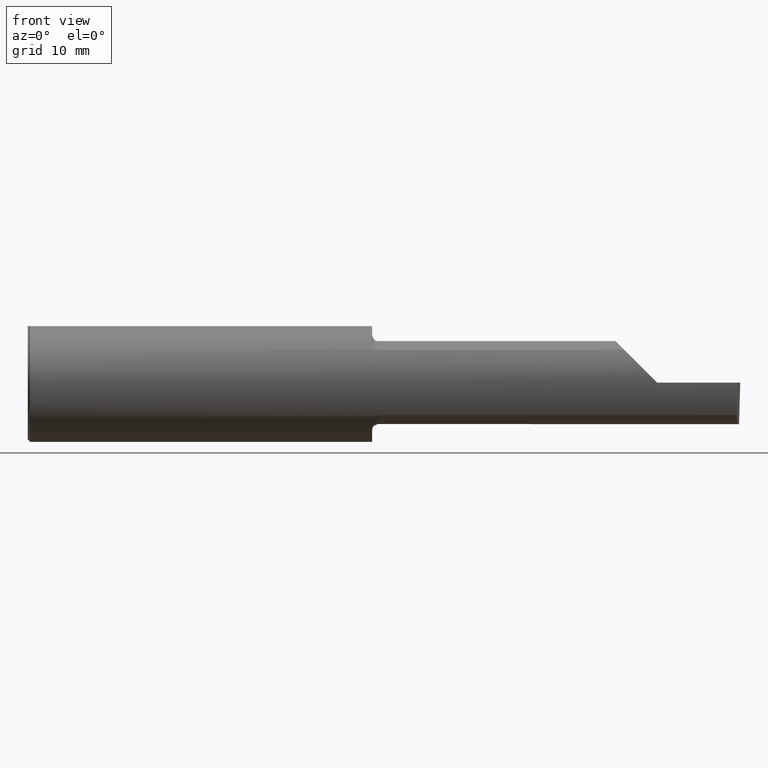
[diagram: clean part render]
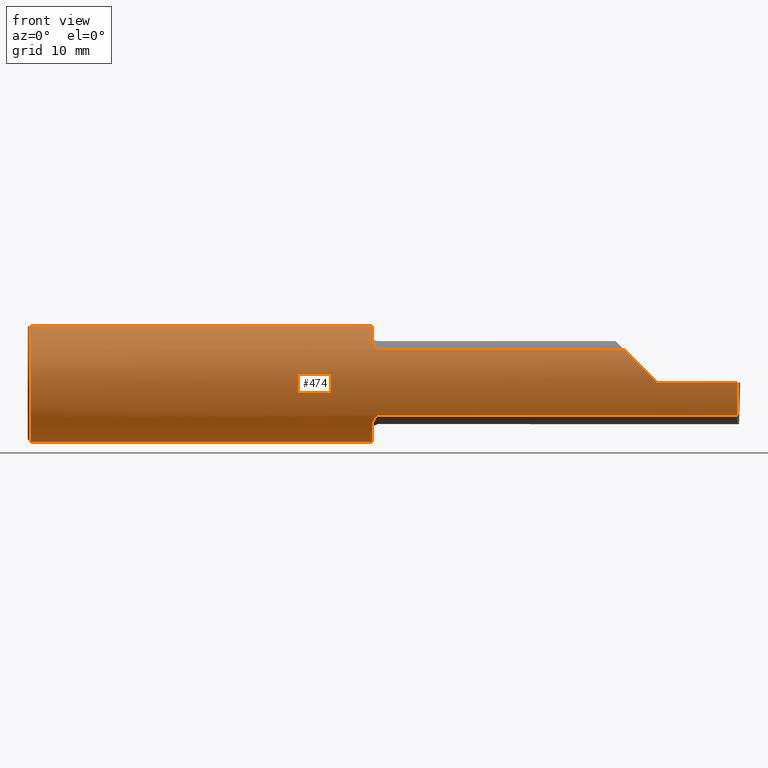
[diagram: same view with one face highlighted and labeled with its STEP entity id]
A machine part, front view. The second image highlights one B-rep face of the part: STEP entity #474.
In plain terms, the highlighted cylindrical surface (partial cylindrical patch) has radius 6.3462 mm, axis along (-1, -0, -0).
Its self-contained STEP definition (entity closure, byte-faithful):
#2 = LINE ( 'NONE', #246, #729 ) ;
#5 = CARTESIAN_POINT ( 'NONE',  ( 1.462579853086619419, -0.2024300470081734082, -0.1464774911482686903 ) ) ;
#8 = CARTESIAN_POINT ( 'NONE',  ( 1.456147634408387459, -0.1932733126899459364, -0.1584637047788198250 ) ) ;
#13 = DIRECTION ( 'NONE',  ( -1.000000000000000000, -0.000000000000000000, -0.000000000000000000 ) ) ;
#15 = CARTESIAN_POINT ( 'NONE',  ( 1.450000000000000178, 0.000000000000000000, 0.000000000000000000 ) ) ;
#18 = VERTEX_POINT ( 'NONE', #254 ) ;
#20 = CARTESIAN_POINT ( 'NONE',  ( 1.462616400345755574, -0.2024684335577101590, 0.1464246884265640314 ) ) ;
#27 = ORIENTED_EDGE ( 'NONE', *, *, #570, .T. ) ;
#46 = EDGE_CURVE ( 'NONE', #343, #18, #316, .T. ) ;
#55 = EDGE_LOOP ( 'NONE', ( #739, #268, #27, #564, #465, #433, #124, #107, #518, #610, #662, #185, #311 ) ) ;
#75 = CARTESIAN_POINT ( 'NONE',  ( 1.450000000000000178, -0.1616050818046603221, 0.1905487340154980724 ) ) ;
#78 = DIRECTION ( 'NONE',  ( 1.000000000000000000, 7.887675390231430346E-17, 0.000000000000000000 ) ) ;
#82 = CARTESIAN_POINT ( 'NONE',  ( 1.458182335268384477, -0.1972192205116129748, 0.1535061413537211761 ) ) ;
#86 = CIRCLE ( 'NONE', #599, 0.2498499999999999888 ) ;
#93 = EDGE_CURVE ( 'NONE', #682, #601, #259, .T. ) ;
#94 = CARTESIAN_POINT ( 'NONE',  ( 2.987107171508847081, -0.2498499999999999888, 0.000000000000000000 ) ) ;
#98 = CARTESIAN_POINT ( 'NONE',  ( 1.451849548162864600, -0.1805300287242673496, 0.1728462070311781729 ) ) ;
#105 = DIRECTION ( 'NONE',  ( 1.000000000000000000, 0.000000000000000000, 0.000000000000000000 ) ) ;
#107 = ORIENTED_EDGE ( 'NONE', *, *, #325, .F. ) ;
#109 = DIRECTION ( 'NONE',  ( -1.000000000000000000, -0.000000000000000000, -0.000000000000000000 ) ) ;
#123 = DIRECTION ( 'NONE',  ( 1.000000000000000000, 0.000000000000000000, 0.000000000000000000 ) ) ;
#124 = ORIENTED_EDGE ( 'NONE', *, *, #439, .F. ) ;
#132 = B_SPLINE_CURVE_WITH_KNOTS ( 'NONE', 3,
 ( #75, #699, #595, #98, #190, #541, #82, #20, #261, #647, #723, #383, #483, #215 ),
 .UNSPECIFIED., .F., .F.,
 ( 4, 2, 2, 2, 2, 2, 4 ),
 ( 0.0003834465838148139985, 0.0008781406165086578369, 0.001372834649202501513, 0.001867528681896345405, 0.002114875698243272231, 0.002238549206416742040, 0.002362222714590212283 ),
 .UNSPECIFIED. ) ;
#138 = DIRECTION ( 'NONE',  ( 0.000000000000000000, 1.000000000000000000, 0.000000000000000000 ) ) ;
#149 = CARTESIAN_POINT ( 'NONE',  ( 2.111894750000000265, -0.2080850024789289432, -0.1382955322609668858 ) ) ;
#157 = CIRCLE ( 'NONE', #218, 0.2498499999999999888 ) ;
#167 = CARTESIAN_POINT ( 'NONE',  ( 2.985913134503198840, -0.2355204011147991605, -0.09701513151466768792 ) ) ;
#172 = CARTESIAN_POINT ( 'NONE',  ( 1.464302603425052363, -0.2041009206016212163, -0.1441313430770041759 ) ) ;
#176 = CARTESIAN_POINT ( 'NONE',  ( 1.451385488563269988, -0.1808287530430324752, -0.1728790649396288459 ) ) ;
#185 = ORIENTED_EDGE ( 'NONE', *, *, #648, .F. ) ;
#187 = CARTESIAN_POINT ( 'NONE',  ( 1.450000000000000178, -0.1616050818046603221, -0.1905487340154980724 ) ) ;
#190 = CARTESIAN_POINT ( 'NONE',  ( 1.452968662030528879, -0.1849684355203377040, 0.1680843977756269203 ) ) ;
#192 = VERTEX_POINT ( 'NONE', #94 ) ;
#196 = DIRECTION ( 'NONE',  ( -1.000000000000000000, -0.000000000000000000, -0.000000000000000000 ) ) ;
#199 = CARTESIAN_POINT ( 'NONE',  ( 0.000000000000000000, 0.07650098038587520299, 0.2378499999999998671 ) ) ;
#215 = CARTESIAN_POINT ( 'NONE',  ( 1.474999999999999867, -0.2080850024789289432, 0.1382955322609669413 ) ) ;
#218 = AXIS2_PLACEMENT_3D ( 'NONE', #743, #565, #390 ) ;
#225 = VERTEX_POINT ( 'NONE', #620 ) ;
#234 = CARTESIAN_POINT ( 'NONE',  ( 1.468863362722771182, -0.2068301641248769251, -0.1401678546132362480 ) ) ;
#236 = DIRECTION ( 'NONE',  ( 0.000000000000000000, 1.000000000000000000, 0.000000000000000000 ) ) ;
#246 = CARTESIAN_POINT ( 'NONE',  ( 0.000000000000000000, -0.07650098038587520299, 0.2378499999999998671 ) ) ;
#253 = FACE_OUTER_BOUND ( 'NONE', #55, .T. ) ;
#254 = CARTESIAN_POINT ( 'NONE',  ( 1.474999999999999867, -0.2080850024789288044, -0.1382955322609669968 ) ) ;
#259 = LINE ( 'NONE', #199, #715 ) ;
#261 = CARTESIAN_POINT ( 'NONE',  ( 1.464343523383979218, -0.2041337200786081940, 0.1440846171672514608 ) ) ;
#268 = ORIENTED_EDGE ( 'NONE', *, *, #577, .T. ) ;
#274 = VERTEX_POINT ( 'NONE', #688 ) ;
#284 = CIRCLE ( 'NONE', #371, 0.2498499999999999888 ) ;
#303 = CARTESIAN_POINT ( 'NONE',  ( 2.111894750000000265, -0.2080850024789289432, 0.1382955322609668858 ) ) ;
#305 = CARTESIAN_POINT ( 'NONE',  ( 0.009999999999999927350, 0.000000000000000000, -0.2498499999999999888 ) ) ;
#306 = CARTESIAN_POINT ( 'NONE',  ( 1.471700027347579098, -0.2077785947292766777, -0.1387580622202827796 ) ) ;
#310 = CARTESIAN_POINT ( 'NONE',  ( 1.473318040126429640, -0.2080850024789289432, -0.1382955322609669135 ) ) ;
#311 = ORIENTED_EDGE ( 'NONE', *, *, #399, .F. ) ;
#316 = LINE ( 'NONE', #149, #618 ) ;
#319 = CARTESIAN_POINT ( 'NONE',  ( 2.552984868485331571, -0.2355204011147991605, 0.09701513151466779894 ) ) ;
#325 = EDGE_CURVE ( 'NONE', #458, #225, #2, .T. ) ;
#334 = CARTESIAN_POINT ( 'NONE',  ( 2.986241469175252128, -0.2498499999999999610, -0.04956584089959703565 ) ) ;
#343 = VERTEX_POINT ( 'NONE', #466 ) ;
#349 =( BOUNDED_CURVE ( )  B_SPLINE_CURVE ( 3, ( #672, #167, #334, #632 ),
 .UNSPECIFIED., .F., .T. ) 
 B_SPLINE_CURVE_WITH_KNOTS ( ( 4, 4 ),
 ( 6.160376845738950280, 6.746954780470608704 ),
 .UNSPECIFIED. ) 
 CURVE ( )  GEOMETRIC_REPRESENTATION_ITEM ( )  RATIONAL_B_SPLINE_CURVE ( ( 1.000000000000000000, 0.9715321379117538569, 0.9715321379117538569, 1.000000000000000000 ) ) 
 REPRESENTATION_ITEM ( '' )  );
#353 = CARTESIAN_POINT ( 'NONE',  ( 1.474999999999999867, -0.2080850024789288044, -0.1382955322609669968 ) ) ;
#355 = CARTESIAN_POINT ( 'NONE',  ( 1.450000000000000178, 0.07650098038587520299, 0.2378499999999998671 ) ) ;
#367 = CARTESIAN_POINT ( 'NONE',  ( 2.650000000000000355, -0.2498499999999999610, 4.286263797015729199E-17 ) ) ;
#371 = AXIS2_PLACEMENT_3D ( 'NONE', #401, #105, #462 ) ;
#381 = EDGE_CURVE ( 'NONE', #645, #413, #744, .T. ) ;
#383 = CARTESIAN_POINT ( 'NONE',  ( 1.471718393013768722, -0.2077830475237239516, 0.1387513848711938724 ) ) ;
#390 = DIRECTION ( 'NONE',  ( 0.000000000000000000, 0.000000000000000000, -1.000000000000000000 ) ) ;
#399 = EDGE_CURVE ( 'NONE', #18, #544, #405, .T. ) ;
#401 = CARTESIAN_POINT ( 'NONE',  ( 0.009999999999999927350, 0.000000000000000000, 0.000000000000000000 ) ) ;
#405 = B_SPLINE_CURVE_WITH_KNOTS ( 'NONE', 3,
 ( #353, #310, #306, #234, #460, #172, #5, #471, #8, #176, #696, #187 ),
 .UNSPECIFIED., .F., .F.,
 ( 4, 2, 2, 2, 2, 4 ),
 ( 1.964491429042083594E-07, 0.0001260981470478296398, 0.0002519998449527550998, 0.0005038032407626199518, 0.001007410032382348788, 0.002014623615621811449 ),
 .UNSPECIFIED. ) ;
#413 = VERTEX_POINT ( 'NONE', #531 ) ;
#419 = CARTESIAN_POINT ( 'NONE',  ( 1.450000000000000178, -0.1616050818046603221, 0.1905487340154980724 ) ) ;
#433 = ORIENTED_EDGE ( 'NONE', *, *, #499, .F. ) ;
#438 = CARTESIAN_POINT ( 'NONE',  ( 0.000000000000000000, 0.000000000000000000, 0.000000000000000000 ) ) ;
#439 = EDGE_CURVE ( 'NONE', #225, #719, #503, .T. ) ;
#447 = CARTESIAN_POINT ( 'NONE',  ( 1.450000000000000178, 0.000000000000000000, 0.000000000000000000 ) ) ;
#458 = VERTEX_POINT ( 'NONE', #498 ) ;
#459 = CARTESIAN_POINT ( 'NONE',  ( 1.474999999999999867, -0.2080850024789289432, 0.1382955322609669413 ) ) ;
#460 = CARTESIAN_POINT ( 'NONE',  ( 1.467611663768900065, -0.2061921161193828456, -0.1411075319999378908 ) ) ;
#462 = DIRECTION ( 'NONE',  ( 0.000000000000000000, 0.000000000000000000, -1.000000000000000000 ) ) ;
#465 = ORIENTED_EDGE ( 'NONE', *, *, #381, .F. ) ;
#466 = CARTESIAN_POINT ( 'NONE',  ( 2.986150208451177512, -0.2080850024789288599, -0.1382955322609668858 ) ) ;
#471 = CARTESIAN_POINT ( 'NONE',  ( 1.458176740666625504, -0.1972027065478071661, -0.1535263573771916135 ) ) ;
#474 = ADVANCED_FACE ( 'NONE', ( #253 ), #535, .T. ) ;
#483 = CARTESIAN_POINT ( 'NONE',  ( 1.473329956043142319, -0.2080850024798589215, 0.1382955322595677272 ) ) ;
#493 = EDGE_CURVE ( 'NONE', #274, #413, #625, .T. ) ;
#498 = CARTESIAN_POINT ( 'NONE',  ( 0.009999999999999927350, -0.07650098038587520299, 0.2378499999999998671 ) ) ;
#499 = EDGE_CURVE ( 'NONE', #719, #645, #132, .T. ) ;
#503 = CIRCLE ( 'NONE', #679, 0.2498499999999999888 ) ;
#510 = LINE ( 'NONE', #687, #562 ) ;
#518 = ORIENTED_EDGE ( 'NONE', *, *, #656, .T. ) ;
#527 = DIRECTION ( 'NONE',  ( 1.000000000000000000, 7.887675390231430346E-17, 0.000000000000000000 ) ) ;
#531 = CARTESIAN_POINT ( 'NONE',  ( 2.511704467739031887, -0.2080850024789288599, 0.1382955322609669413 ) ) ;
#535 = CYLINDRICAL_SURFACE ( 'NONE', #561, 0.2498499999999999888 ) ;
#538 = DIRECTION ( 'NONE',  ( -1.000000000000000000, -7.887675390231430346E-17, -0.000000000000000000 ) ) ;
#541 = CARTESIAN_POINT ( 'NONE',  ( 1.456159563508734101, -0.1933019864360848161, 0.1584298865564833236 ) ) ;
#544 = VERTEX_POINT ( 'NONE', #571 ) ;
#548 = VECTOR ( 'NONE', #527, 39.37007874015748143 ) ;
#561 = AXIS2_PLACEMENT_3D ( 'NONE', #438, #196, #652 ) ;
#562 = VECTOR ( 'NONE', #109, 39.37007874015748143 ) ;
#564 = ORIENTED_EDGE ( 'NONE', *, *, #493, .T. ) ;
#565 = DIRECTION ( 'NONE',  ( 1.000000000000000000, 0.000000000000000000, 0.000000000000000000 ) ) ;
#570 = EDGE_CURVE ( 'NONE', #192, #274, #510, .T. ) ;
#571 = CARTESIAN_POINT ( 'NONE',  ( 1.450000000000000178, -0.1616050818046603221, -0.1905487340154980724 ) ) ;
#577 = EDGE_CURVE ( 'NONE', #343, #192, #349, .T. ) ;
#581 = EDGE_CURVE ( 'NONE', #731, #601, #157, .T. ) ;
#588 = CARTESIAN_POINT ( 'NONE',  ( 2.600434159100402987, -0.2498499999999999610, 0.04956584089959713973 ) ) ;
#595 = CARTESIAN_POINT ( 'NONE',  ( 1.450367168219774516, -0.1713400252854602457, 0.1819601557798506686 ) ) ;
#599 = AXIS2_PLACEMENT_3D ( 'NONE', #447, #683, #236 ) ;
#601 = VERTEX_POINT ( 'NONE', #675 ) ;
#610 = ORIENTED_EDGE ( 'NONE', *, *, #581, .T. ) ;
#618 = VECTOR ( 'NONE', #538, 39.37007874015748143 ) ;
#620 = CARTESIAN_POINT ( 'NONE',  ( 1.450000000000000178, -0.07650098038587530014, 0.2378499999999998671 ) ) ;
#625 =( BOUNDED_CURVE ( )  B_SPLINE_CURVE ( 3, ( #367, #588, #319, #668 ),
 .UNSPECIFIED., .F., .F. ) 
 B_SPLINE_CURVE_WITH_KNOTS ( ( 4, 4 ),
 ( 4.712388980384689674, 5.298966915116348986 ),
 .UNSPECIFIED. ) 
 CURVE ( )  GEOMETRIC_REPRESENTATION_ITEM ( )  RATIONAL_B_SPLINE_CURVE ( ( 1.000000000000000000, 0.9715321379117536349, 0.9715321379117536349, 1.000000000000000000 ) ) 
 REPRESENTATION_ITEM ( '' )  );
#632 = CARTESIAN_POINT ( 'NONE',  ( 2.987107171508847081, -0.2498499999999999888, 0.000000000000000000 ) ) ;
#645 = VERTEX_POINT ( 'NONE', #459 ) ;
#647 = CARTESIAN_POINT ( 'NONE',  ( 1.467647060162627692, -0.2062109266231180182, 0.1410799729252292523 ) ) ;
#648 = EDGE_CURVE ( 'NONE', #544, #682, #86, .T. ) ;
#652 = DIRECTION ( 'NONE',  ( 0.000000000000000000, 0.000000000000000000, 1.000000000000000000 ) ) ;
#656 = EDGE_CURVE ( 'NONE', #458, #731, #284, .T. ) ;
#662 = ORIENTED_EDGE ( 'NONE', *, *, #93, .F. ) ;
#668 = CARTESIAN_POINT ( 'NONE',  ( 2.511704467739031887, -0.2080850024789288599, 0.1382955322609669413 ) ) ;
#672 = CARTESIAN_POINT ( 'NONE',  ( 2.986150208451177512, -0.2080850024789288599, -0.1382955322609668858 ) ) ;
#675 = CARTESIAN_POINT ( 'NONE',  ( 0.009999999999999927350, 0.07650098038587520299, 0.2378499999999998671 ) ) ;
#679 = AXIS2_PLACEMENT_3D ( 'NONE', #15, #78, #138 ) ;
#682 = VERTEX_POINT ( 'NONE', #355 ) ;
#683 = DIRECTION ( 'NONE',  ( 1.000000000000000000, 7.887675390231430346E-17, 0.000000000000000000 ) ) ;
#687 = CARTESIAN_POINT ( 'NONE',  ( 4.499279347985562423E-32, -0.2498499999999999610, 3.673940397442054938E-16 ) ) ;
#688 = CARTESIAN_POINT ( 'NONE',  ( 2.650000000000000355, -0.2498499999999999610, 4.286263797015729199E-17 ) ) ;
#696 = CARTESIAN_POINT ( 'NONE',  ( 1.449999999999999734, -0.1716188362992553951, -0.1820560320165480472 ) ) ;
#699 = CARTESIAN_POINT ( 'NONE',  ( 1.450000000000000400, -0.1665641037263009272, 0.1863429692936362791 ) ) ;
#715 = VECTOR ( 'NONE', #13, 39.37007874015748143 ) ;
#719 = VERTEX_POINT ( 'NONE', #419 ) ;
#723 = CARTESIAN_POINT ( 'NONE',  ( 1.468876997637614812, -0.2068363917296598131, 0.1401586554522231687 ) ) ;
#729 = VECTOR ( 'NONE', #123, 39.37007874015748143 ) ;
#731 = VERTEX_POINT ( 'NONE', #305 ) ;
#739 = ORIENTED_EDGE ( 'NONE', *, *, #46, .F. ) ;
#743 = CARTESIAN_POINT ( 'NONE',  ( 0.009999999999999927350, 0.000000000000000000, 0.000000000000000000 ) ) ;
#744 = LINE ( 'NONE', #303, #548 ) ;